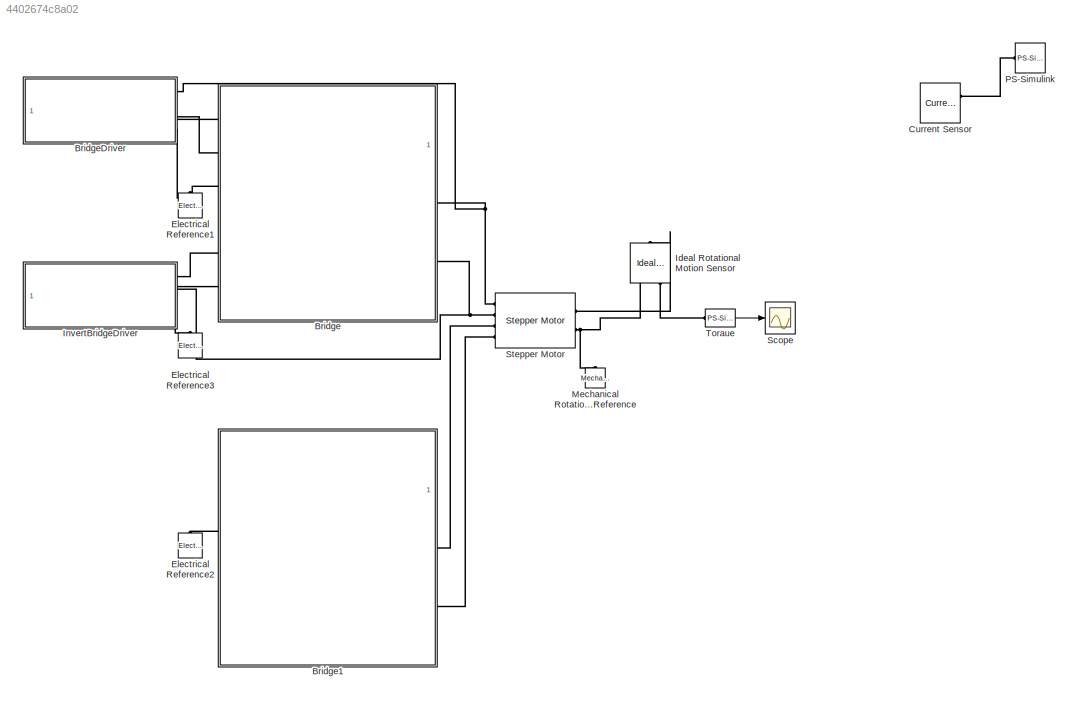
MODEL slx_4402674c8a02
KIND model
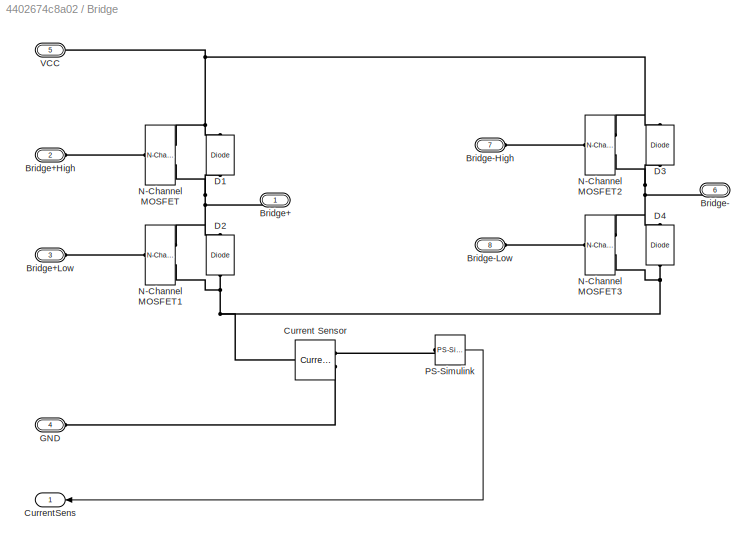
BLOCK [SubSystem] Bridge
  FunctionWithSeparateData = off
  MaskHideContents = off
  MinAlgLoopOccurrences = off
  Opaque = off
  Ports = [0, 1, 0, 0, 0, 6, 2]
  PropExecContextOutsideSubsystem = off
  RTWSystemCode = Auto
  RequestExecContextInheritance = off
BLOCK [PMIOPort] Bridge/Bridge+
  Port = 1
  Side = Right
BLOCK [PMIOPort] Bridge/Bridge+High
  Port = 2
  Side = Left
BLOCK [PMIOPort] Bridge/Bridge+Low
  Port = 3
  Side = Left
BLOCK [PMIOPort] Bridge/Bridge-
  Port = 6
  Side = Right
BLOCK [PMIOPort] Bridge/Bridge-High
  Port = 7
  Side = Left
BLOCK [PMIOPort] Bridge/Bridge-Low
  Port = 8
  Side = Left
BLOCK [Reference] Bridge/Current Sensor  REF=fl_lib/Electrical/Electrical Sensors/Current Sensor
  ClassName = current
  ComponentPath = foundation.electrical.sensors.current
  ComponentVariantNames = current
  ComponentVariants = foundation.electrical.sensors.current
  LocalVarDescs = |i1|v1
  LocalVarLogging = [0 0]
  LocalVarNames = |i1|v1
  Ports = [0, 0, 0, 0, 0, 1, 2]
  SchemaVersion = 1
  SourceBlock = fl_lib/Electrical/Electrical Sensors/Current Sensor
  SourceFile = foundation.electrical.sensors.current
  SourceType = Current Sensor
  i1_Log = off
  v1_Log = off
BLOCK [Outport] Bridge/CurrentSens
  IconDisplay = Signal name
BLOCK [Reference] Bridge/D1  REF=elec_lib/Semiconductor
Devices/Diode
  BV = Inf
  BV_unit = V
  CJ0 = 100
  CJ0_unit = pF
  C_PWL = 5
  C_PWL_unit = pF
  C_param = 1
  C_param_unit = 1
  ClassName = diode
  ComponentPath = elec.semiconductors.diode
  ComponentVariantNames = No thermal port, Show thermal port
  ComponentVariants = elec.semiconductors.diode, elec.semiconductors.diode_thermal
  Cvec = [ 3.5 1 0.4 ]
  Cvec_unit = pF
  EG = 1.11
  EG_param = 1
  EG_param_unit = 1
  EG_unit = eV
  FC = 0.5
  FC_unit = 1
  Goff = 1e-8
  Goff_unit = S
  I1 = 0.07
  I12 = [ 0.25 5 ]
  I12_unit = A
  I1_T2 = 0.245
  I1_T2_unit = A
  I1_unit = A
  IS = 1e-14
  IS_T2 = 1.25e-7
  IS_T2_unit = A
  IS_unit = A
  Irrm = -7.15
  Irrm_unit = A
  LocalVarLogging = []
  Mgrad = 0.5
  Mgrad_unit = 1
  ModelType = 3
  ModelType_unit = 1
  Ports = [0, 0, 0, 0, 0, 1, 1]
  Q_param = 1
  Q_param_unit = 1
  RS = 0.01
  RS_unit = Ohm
  Ron = 0.3
  Ron_unit = Ohm
  Rth = [ 0 10 ]
  Rth_unit = K/W
  Rz = 0.3
  Rz_unit = Ohm
  SchemaVersion = 1
  SourceBlock = elec_lib/Semiconductor\nDevices/Diode
  SourceFile = elec.semiconductors.diode
  SourceType = Diode
  TT = 50
  TT_unit = ns
  T_param = 1
  T_param_unit = 1
  Tdevice = 25
  Tdevice_unit = C
  Tmeas = 25
  Tmeas2 = 125
  Tmeas2_unit = C
  Tmeas_unit = C
  V1 = 0.7
  V12 = [ 0.7 0.8 ]
  V12_unit = V
  V1_T2 = 0.5
  V1_T2_unit = V
  V1_unit = V
  VJ = 1
  VJ_unit = V
  Vf = 0.6
  Vf_unit = V
  Vvec = [ 0.1 10 100 ]
  Vvec_unit = V
  Vz = 50
  Vz_unit = V
  XTI = 3
  XTI_param = 1
  XTI_param_unit = 1
  XTI_unit = 1
  dBVdT = 0
  dBVdT_unit = V/K
  didt = -750
  didt_unit = A/us
  ec = 1
  ec_unit = 1
  iF = 4
  iF_unit = A
  prmExp = 1
  prmExp_unit = 1
  tau = 100
  tau_unit = ns
  thermal_mass = [ 0 1 ]
  thermal_mass_initial_temperatures = [ 25 25 ]
  thermal_mass_initial_temperatures_unit = C
  thermal_mass_parameterization = 1
  thermal_mass_parameterization_unit = 1
  thermal_mass_unit = J/K
  thermal_time_constant = [ 0 10 ]
  thermal_time_constant_unit = s
  trr = 115
  trr_unit = ns
BLOCK [Reference] Bridge/D2  REF=elec_lib/Semiconductor
Devices/Diode
  BV = Inf
  BV_unit = V
  CJ0 = 100
  CJ0_unit = pF
  C_PWL = 5
  C_PWL_unit = pF
  C_param = 1
  C_param_unit = 1
  ClassName = diode
  ComponentPath = elec.semiconductors.diode
  ComponentVariantNames = No thermal port, Show thermal port
  ComponentVariants = elec.semiconductors.diode, elec.semiconductors.diode_thermal
  Cvec = [ 3.5 1 0.4 ]
  Cvec_unit = pF
  EG = 1.11
  EG_param = 1
  EG_param_unit = 1
  EG_unit = eV
  FC = 0.5
  FC_unit = 1
  Goff = 1e-8
  Goff_unit = S
  I1 = 0.07
  I12 = [ 0.25 5 ]
  I12_unit = A
  I1_T2 = 0.245
  I1_T2_unit = A
  I1_unit = A
  IS = 1e-14
  IS_T2 = 1.25e-7
  IS_T2_unit = A
  IS_unit = A
  Irrm = -7.15
  Irrm_unit = A
  LocalVarLogging = []
  Mgrad = 0.5
  Mgrad_unit = 1
  ModelType = 3
  ModelType_unit = 1
  Ports = [0, 0, 0, 0, 0, 1, 1]
  Q_param = 1
  Q_param_unit = 1
  RS = 0.01
  RS_unit = Ohm
  Ron = 0.3
  Ron_unit = Ohm
  Rth = [ 0 10 ]
  Rth_unit = K/W
  Rz = 0.3
  Rz_unit = Ohm
  SchemaVersion = 1
  SourceBlock = elec_lib/Semiconductor\nDevices/Diode
  SourceFile = elec.semiconductors.diode
  SourceType = Diode
  TT = 50
  TT_unit = ns
  T_param = 1
  T_param_unit = 1
  Tdevice = 25
  Tdevice_unit = C
  Tmeas = 25
  Tmeas2 = 125
  Tmeas2_unit = C
  Tmeas_unit = C
  V1 = 0.7
  V12 = [ 0.7 0.8 ]
  V12_unit = V
  V1_T2 = 0.5
  V1_T2_unit = V
  V1_unit = V
  VJ = 1
  VJ_unit = V
  Vf = 0.6
  Vf_unit = V
  Vvec = [ 0.1 10 100 ]
  Vvec_unit = V
  Vz = 50
  Vz_unit = V
  XTI = 3
  XTI_param = 1
  XTI_param_unit = 1
  XTI_unit = 1
  dBVdT = 0
  dBVdT_unit = V/K
  didt = -750
  didt_unit = A/us
  ec = 1
  ec_unit = 1
  iF = 4
  iF_unit = A
  prmExp = 1
  prmExp_unit = 1
  tau = 100
  tau_unit = ns
  thermal_mass = [ 0 1 ]
  thermal_mass_initial_temperatures = [ 25 25 ]
  thermal_mass_initial_temperatures_unit = C
  thermal_mass_parameterization = 1
  thermal_mass_parameterization_unit = 1
  thermal_mass_unit = J/K
  thermal_time_constant = [ 0 10 ]
  thermal_time_constant_unit = s
  trr = 115
  trr_unit = ns
BLOCK [Reference] Bridge/D3  REF=elec_lib/Semiconductor
Devices/Diode
  BV = Inf
  BV_unit = V
  CJ0 = 100
  CJ0_unit = pF
  C_PWL = 5
  C_PWL_unit = pF
  C_param = 1
  C_param_unit = 1
  ClassName = diode
  ComponentPath = elec.semiconductors.diode
  ComponentVariantNames = No thermal port, Show thermal port
  ComponentVariants = elec.semiconductors.diode, elec.semiconductors.diode_thermal
  Cvec = [ 3.5 1 0.4 ]
  Cvec_unit = pF
  EG = 1.11
  EG_param = 1
  EG_param_unit = 1
  EG_unit = eV
  FC = 0.5
  FC_unit = 1
  Goff = 1e-8
  Goff_unit = S
  I1 = 0.07
  I12 = [ 0.25 5 ]
  I12_unit = A
  I1_T2 = 0.245
  I1_T2_unit = A
  I1_unit = A
  IS = 1e-14
  IS_T2 = 1.25e-7
  IS_T2_unit = A
  IS_unit = A
  Irrm = -7.15
  Irrm_unit = A
  LocalVarLogging = []
  Mgrad = 0.5
  Mgrad_unit = 1
  ModelType = 3
  ModelType_unit = 1
  Ports = [0, 0, 0, 0, 0, 1, 1]
  Q_param = 1
  Q_param_unit = 1
  RS = 0.01
  RS_unit = Ohm
  Ron = 0.3
  Ron_unit = Ohm
  Rth = [ 0 10 ]
  Rth_unit = K/W
  Rz = 0.3
  Rz_unit = Ohm
  SchemaVersion = 1
  SourceBlock = elec_lib/Semiconductor\nDevices/Diode
  SourceFile = elec.semiconductors.diode
  SourceType = Diode
  TT = 50
  TT_unit = ns
  T_param = 1
  T_param_unit = 1
  Tdevice = 25
  Tdevice_unit = C
  Tmeas = 25
  Tmeas2 = 125
  Tmeas2_unit = C
  Tmeas_unit = C
  V1 = 0.7
  V12 = [ 0.7 0.8 ]
  V12_unit = V
  V1_T2 = 0.5
  V1_T2_unit = V
  V1_unit = V
  VJ = 1
  VJ_unit = V
  Vf = 0.6
  Vf_unit = V
  Vvec = [ 0.1 10 100 ]
  Vvec_unit = V
  Vz = 50
  Vz_unit = V
  XTI = 3
  XTI_param = 1
  XTI_param_unit = 1
  XTI_unit = 1
  dBVdT = 0
  dBVdT_unit = V/K
  didt = -750
  didt_unit = A/us
  ec = 1
  ec_unit = 1
  iF = 4
  iF_unit = A
  prmExp = 1
  prmExp_unit = 1
  tau = 100
  tau_unit = ns
  thermal_mass = [ 0 1 ]
  thermal_mass_initial_temperatures = [ 25 25 ]
  thermal_mass_initial_temperatures_unit = C
  thermal_mass_parameterization = 1
  thermal_mass_parameterization_unit = 1
  thermal_mass_unit = J/K
  thermal_time_constant = [ 0 10 ]
  thermal_time_constant_unit = s
  trr = 115
  trr_unit = ns
BLOCK [Reference] Bridge/D4  REF=elec_lib/Semiconductor
Devices/Diode
  BV = Inf
  BV_unit = V
  CJ0 = 100
  CJ0_unit = pF
  C_PWL = 5
  C_PWL_unit = pF
  C_param = 1
  C_param_unit = 1
  ClassName = diode
  ComponentPath = elec.semiconductors.diode
  ComponentVariantNames = No thermal port, Show thermal port
  ComponentVariants = elec.semiconductors.diode, elec.semiconductors.diode_thermal
  Cvec = [ 3.5 1 0.4 ]
  Cvec_unit = pF
  EG = 1.11
  EG_param = 1
  EG_param_unit = 1
  EG_unit = eV
  FC = 0.5
  FC_unit = 1
  Goff = 1e-8
  Goff_unit = S
  I1 = 0.07
  I12 = [ 0.25 5 ]
  I12_unit = A
  I1_T2 = 0.245
  I1_T2_unit = A
  I1_unit = A
  IS = 1e-14
  IS_T2 = 1.25e-7
  IS_T2_unit = A
  IS_unit = A
  Irrm = -7.15
  Irrm_unit = A
  LocalVarLogging = []
  Mgrad = 0.5
  Mgrad_unit = 1
  ModelType = 3
  ModelType_unit = 1
  Ports = [0, 0, 0, 0, 0, 1, 1]
  Q_param = 1
  Q_param_unit = 1
  RS = 0.01
  RS_unit = Ohm
  Ron = 0.3
  Ron_unit = Ohm
  Rth = [ 0 10 ]
  Rth_unit = K/W
  Rz = 0.3
  Rz_unit = Ohm
  SchemaVersion = 1
  SourceBlock = elec_lib/Semiconductor\nDevices/Diode
  SourceFile = elec.semiconductors.diode
  SourceType = Diode
  TT = 50
  TT_unit = ns
  T_param = 1
  T_param_unit = 1
  Tdevice = 25
  Tdevice_unit = C
  Tmeas = 25
  Tmeas2 = 125
  Tmeas2_unit = C
  Tmeas_unit = C
  V1 = 0.7
  V12 = [ 0.7 0.8 ]
  V12_unit = V
  V1_T2 = 0.5
  V1_T2_unit = V
  V1_unit = V
  VJ = 1
  VJ_unit = V
  Vf = 0.6
  Vf_unit = V
  Vvec = [ 0.1 10 100 ]
  Vvec_unit = V
  Vz = 50
  Vz_unit = V
  XTI = 3
  XTI_param = 1
  XTI_param_unit = 1
  XTI_unit = 1
  dBVdT = 0
  dBVdT_unit = V/K
  didt = -750
  didt_unit = A/us
  ec = 1
  ec_unit = 1
  iF = 4
  iF_unit = A
  prmExp = 1
  prmExp_unit = 1
  tau = 100
  tau_unit = ns
  thermal_mass = [ 0 1 ]
  thermal_mass_initial_temperatures = [ 25 25 ]
  thermal_mass_initial_temperatures_unit = C
  thermal_mass_parameterization = 1
  thermal_mass_parameterization_unit = 1
  thermal_mass_unit = J/K
  thermal_time_constant = [ 0 10 ]
  thermal_time_constant_unit = s
  trr = 115
  trr_unit = ns
BLOCK [PMIOPort] Bridge/GND 
  Port = 4
  Side = Left
BLOCK [Reference] Bridge/N-Channel MOSFET  REF=elec_lib/Semiconductor
Devices/N-Channel MOSFET
  BEXDatasheet = -1.5
  BEXDatasheet_unit = 1
  BEXEquCoeff = -1.5
  BEXEquCoeff_unit = 1
  Beta = 5
  Beta_unit = A/V^2
  C_GD = 80
  C_GD_unit = pF
  C_GS = 270
  C_GS_unit = pF
  C_iss = 350
  C_iss_unit = pF
  C_param = 1
  C_param_unit = 1
  C_rss = 80
  C_rss_unit = pF
  ClassName = Simscape variant
  ComponentPath = elec.semiconductors.n_mosfet
  ComponentVariantNames = No thermal port, Show thermal port
  ComponentVariants = elec.semiconductors.n_mosfet, elec.semiconductors.n_mosfet_thermal
  Id = 6
  Id_unit = A
  LocalVarLogging = []
  Ports = [0, 0, 0, 0, 0, 1, 2]
  RD = 0.01
  RD_unit = Ohm
  RS = 1e-4
  RS_unit = Ohm
  Rds = 0.025
  Rds_T2 = 0.037
  Rds_T2_unit = Ohm
  Rds_unit = Ohm
  Rth = [ 0 10 ]
  Rth_unit = K/W
  SchemaVersion = 1
  SourceBlock = elec_lib/Semiconductor\nDevices/N-Channel MOSFET
  SourceFile = elec.semiconductors.n_mosfet
  SourceType = N-Channel MOSFET
  TdeviceDatasheet = 25
  TdeviceDatasheet_unit = C
  TdeviceEquCoeff = 25
  TdeviceEquCoeff_unit = C
  Tmeas = 25
  Tmeas2 = 125
  Tmeas2_unit = C
  Tmeas_unit = C
  Vgs = 10
  Vgs_unit = V
  Vth = 1.7
  Vth_unit = V
  dVth_dT = -6
  dVth_dT_unit = mV/K
  lam = 0
  lam_unit = 1/V
  parameterization = 1
  parameterization_unit = 1
  prmDatasheet = 1
  prmDatasheet_unit = 1
  prmEquCoeff = 1
  prmEquCoeff_unit = 1
  thermal_mass = [ 0 1 ]
  thermal_mass_initial_temperatures = [ 25 25 ]
  thermal_mass_initial_temperatures_unit = C
  thermal_mass_parameterization = 1
  thermal_mass_parameterization_unit = 1
  thermal_mass_unit = J/K
  thermal_time_constant = [ 0 10 ]
  thermal_time_constant_unit = s
BLOCK [Reference] Bridge/N-Channel MOSFET1  REF=elec_lib/Semiconductor
Devices/N-Channel MOSFET
  BEXDatasheet = -1.5
  BEXDatasheet_unit = 1
  BEXEquCoeff = -1.5
  BEXEquCoeff_unit = 1
  Beta = 5
  Beta_unit = A/V^2
  C_GD = 80
  C_GD_unit = pF
  C_GS = 270
  C_GS_unit = pF
  C_iss = 350
  C_iss_unit = pF
  C_param = 1
  C_param_unit = 1
  C_rss = 80
  C_rss_unit = pF
  ClassName = Simscape variant
  ComponentPath = elec.semiconductors.n_mosfet
  ComponentVariantNames = No thermal port, Show thermal port
  ComponentVariants = elec.semiconductors.n_mosfet, elec.semiconductors.n_mosfet_thermal
  Id = 6
  Id_unit = A
  LocalVarLogging = []
  Ports = [0, 0, 0, 0, 0, 1, 2]
  RD = 0.01
  RD_unit = Ohm
  RS = 1e-4
  RS_unit = Ohm
  Rds = 0.025
  Rds_T2 = 0.037
  Rds_T2_unit = Ohm
  Rds_unit = Ohm
  Rth = [ 0 10 ]
  Rth_unit = K/W
  SchemaVersion = 1
  SourceBlock = elec_lib/Semiconductor\nDevices/N-Channel MOSFET
  SourceFile = elec.semiconductors.n_mosfet
  SourceType = N-Channel MOSFET
  TdeviceDatasheet = 25
  TdeviceDatasheet_unit = C
  TdeviceEquCoeff = 25
  TdeviceEquCoeff_unit = C
  Tmeas = 25
  Tmeas2 = 125
  Tmeas2_unit = C
  Tmeas_unit = C
  Vgs = 10
  Vgs_unit = V
  Vth = 1.7
  Vth_unit = V
  dVth_dT = -6
  dVth_dT_unit = mV/K
  lam = 0
  lam_unit = 1/V
  parameterization = 1
  parameterization_unit = 1
  prmDatasheet = 1
  prmDatasheet_unit = 1
  prmEquCoeff = 1
  prmEquCoeff_unit = 1
  thermal_mass = [ 0 1 ]
  thermal_mass_initial_temperatures = [ 25 25 ]
  thermal_mass_initial_temperatures_unit = C
  thermal_mass_parameterization = 1
  thermal_mass_parameterization_unit = 1
  thermal_mass_unit = J/K
  thermal_time_constant = [ 0 10 ]
  thermal_time_constant_unit = s
BLOCK [Reference] Bridge/N-Channel MOSFET2  REF=elec_lib/Semiconductor
Devices/N-Channel MOSFET
  BEXDatasheet = -1.5
  BEXDatasheet_unit = 1
  BEXEquCoeff = -1.5
  BEXEquCoeff_unit = 1
  Beta = 5
  Beta_unit = A/V^2
  C_GD = 80
  C_GD_unit = pF
  C_GS = 270
  C_GS_unit = pF
  C_iss = 350
  C_iss_unit = pF
  C_param = 1
  C_param_unit = 1
  C_rss = 80
  C_rss_unit = pF
  ClassName = Simscape variant
  ComponentPath = elec.semiconductors.n_mosfet
  ComponentVariantNames = No thermal port, Show thermal port
  ComponentVariants = elec.semiconductors.n_mosfet, elec.semiconductors.n_mosfet_thermal
  Id = 6
  Id_unit = A
  LocalVarLogging = []
  Ports = [0, 0, 0, 0, 0, 1, 2]
  RD = 0.01
  RD_unit = Ohm
  RS = 1e-4
  RS_unit = Ohm
  Rds = 0.025
  Rds_T2 = 0.037
  Rds_T2_unit = Ohm
  Rds_unit = Ohm
  Rth = [ 0 10 ]
  Rth_unit = K/W
  SchemaVersion = 1
  SourceBlock = elec_lib/Semiconductor\nDevices/N-Channel MOSFET
  SourceFile = elec.semiconductors.n_mosfet
  SourceType = N-Channel MOSFET
  TdeviceDatasheet = 25
  TdeviceDatasheet_unit = C
  TdeviceEquCoeff = 25
  TdeviceEquCoeff_unit = C
  Tmeas = 25
  Tmeas2 = 125
  Tmeas2_unit = C
  Tmeas_unit = C
  Vgs = 10
  Vgs_unit = V
  Vth = 1.7
  Vth_unit = V
  dVth_dT = -6
  dVth_dT_unit = mV/K
  lam = 0
  lam_unit = 1/V
  parameterization = 1
  parameterization_unit = 1
  prmDatasheet = 1
  prmDatasheet_unit = 1
  prmEquCoeff = 1
  prmEquCoeff_unit = 1
  thermal_mass = [ 0 1 ]
  thermal_mass_initial_temperatures = [ 25 25 ]
  thermal_mass_initial_temperatures_unit = C
  thermal_mass_parameterization = 1
  thermal_mass_parameterization_unit = 1
  thermal_mass_unit = J/K
  thermal_time_constant = [ 0 10 ]
  thermal_time_constant_unit = s
BLOCK [Reference] Bridge/N-Channel MOSFET3  REF=elec_lib/Semiconductor
Devices/N-Channel MOSFET
  BEXDatasheet = -1.5
  BEXDatasheet_unit = 1
  BEXEquCoeff = -1.5
  BEXEquCoeff_unit = 1
  Beta = 5
  Beta_unit = A/V^2
  C_GD = 80
  C_GD_unit = pF
  C_GS = 270
  C_GS_unit = pF
  C_iss = 350
  C_iss_unit = pF
  C_param = 1
  C_param_unit = 1
  C_rss = 80
  C_rss_unit = pF
  ClassName = Simscape variant
  ComponentPath = elec.semiconductors.n_mosfet
  ComponentVariantNames = No thermal port, Show thermal port
  ComponentVariants = elec.semiconductors.n_mosfet, elec.semiconductors.n_mosfet_thermal
  Id = 6
  Id_unit = A
  LocalVarLogging = []
  Ports = [0, 0, 0, 0, 0, 1, 2]
  RD = 0.01
  RD_unit = Ohm
  RS = 1e-4
  RS_unit = Ohm
  Rds = 0.025
  Rds_T2 = 0.037
  Rds_T2_unit = Ohm
  Rds_unit = Ohm
  Rth = [ 0 10 ]
  Rth_unit = K/W
  SchemaVersion = 1
  SourceBlock = elec_lib/Semiconductor\nDevices/N-Channel MOSFET
  SourceFile = elec.semiconductors.n_mosfet
  SourceType = N-Channel MOSFET
  TdeviceDatasheet = 25
  TdeviceDatasheet_unit = C
  TdeviceEquCoeff = 25
  TdeviceEquCoeff_unit = C
  Tmeas = 25
  Tmeas2 = 125
  Tmeas2_unit = C
  Tmeas_unit = C
  Vgs = 10
  Vgs_unit = V
  Vth = 1.7
  Vth_unit = V
  dVth_dT = -6
  dVth_dT_unit = mV/K
  lam = 0
  lam_unit = 1/V
  parameterization = 1
  parameterization_unit = 1
  prmDatasheet = 1
  prmDatasheet_unit = 1
  prmEquCoeff = 1
  prmEquCoeff_unit = 1
  thermal_mass = [ 0 1 ]
  thermal_mass_initial_temperatures = [ 25 25 ]
  thermal_mass_initial_temperatures_unit = C
  thermal_mass_parameterization = 1
  thermal_mass_parameterization_unit = 1
  thermal_mass_unit = J/K
  thermal_time_constant = [ 0 10 ]
  thermal_time_constant_unit = s
BLOCK [Reference] Bridge/PS-Simulink  REF=nesl_utility/PS-Simulink
Converter
  AffineConversion = off
  Frequencies = []
  LeftPortType = input
  PhysicalDomain = network_engine_domain
  Ports = [0, 1, 0, 0, 0, 1]
  PseudoPeriodic = off
  RightPortType = output
  SourceBlock = nesl_utility/PS-Simulink\nConverter
  SourceType = PS-Simulink\nConverter
  SubClassName = ps_output
  Unit = A
BLOCK [PMIOPort] Bridge/VCC
  Port = 5
  Side = Left
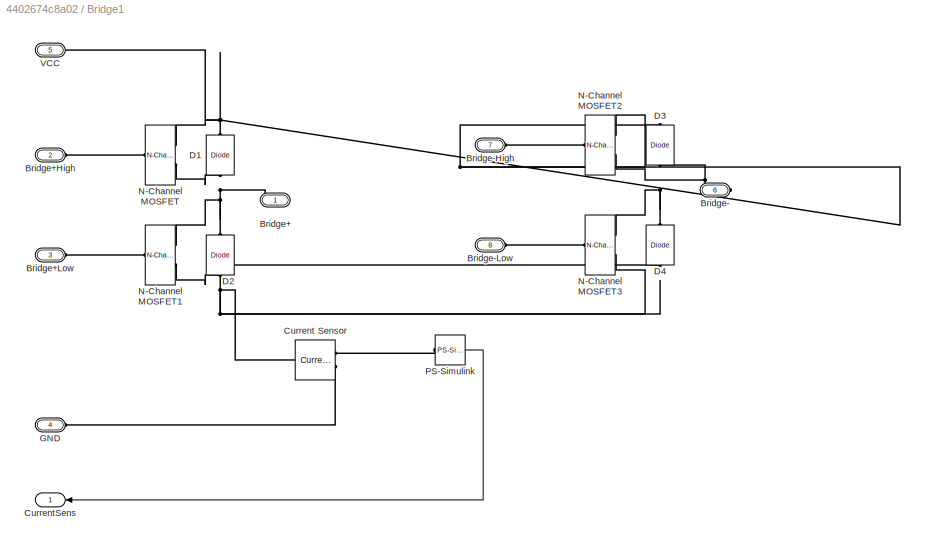
BLOCK [SubSystem] Bridge1
  FunctionWithSeparateData = off
  MaskHideContents = off
  MinAlgLoopOccurrences = off
  Opaque = off
  Ports = [0, 1, 0, 0, 0, 6, 2]
  PropExecContextOutsideSubsystem = off
  RTWSystemCode = Auto
  RequestExecContextInheritance = off
BLOCK [PMIOPort] Bridge1/Bridge+
  Port = 1
  Side = Right
BLOCK [PMIOPort] Bridge1/Bridge+High
  Port = 2
  Side = Left
BLOCK [PMIOPort] Bridge1/Bridge+Low
  Port = 3
  Side = Left
BLOCK [PMIOPort] Bridge1/Bridge-
  Port = 6
  Side = Right
BLOCK [PMIOPort] Bridge1/Bridge-High
  Port = 7
  Side = Left
BLOCK [PMIOPort] Bridge1/Bridge-Low
  Port = 8
  Side = Left
BLOCK [Reference] Bridge1/Current Sensor  REF=fl_lib/Electrical/Electrical Sensors/Current Sensor
  ClassName = current
  ComponentPath = foundation.electrical.sensors.current
  ComponentVariantNames = current
  ComponentVariants = foundation.electrical.sensors.current
  LocalVarDescs = |i1|v1
  LocalVarLogging = [0 0]
  LocalVarNames = |i1|v1
  Ports = [0, 0, 0, 0, 0, 1, 2]
  SchemaVersion = 1
  SourceBlock = fl_lib/Electrical/Electrical Sensors/Current Sensor
  SourceFile = foundation.electrical.sensors.current
  SourceType = Current Sensor
  i1_Log = off
  v1_Log = off
BLOCK [Outport] Bridge1/CurrentSens
  IconDisplay = Signal name
BLOCK [Reference] Bridge1/D1  REF=elec_lib/Semiconductor
Devices/Diode
  BV = Inf
  BV_unit = V
  CJ0 = 100
  CJ0_unit = pF
  C_PWL = 5
  C_PWL_unit = pF
  C_param = 1
  C_param_unit = 1
  ClassName = diode
  ComponentPath = elec.semiconductors.diode
  ComponentVariantNames = No thermal port, Show thermal port
  ComponentVariants = elec.semiconductors.diode, elec.semiconductors.diode_thermal
  Cvec = [ 3.5 1 0.4 ]
  Cvec_unit = pF
  EG = 1.11
  EG_param = 1
  EG_param_unit = 1
  EG_unit = eV
  FC = 0.5
  FC_unit = 1
  Goff = 1e-8
  Goff_unit = S
  I1 = 0.07
  I12 = [ 0.25 5 ]
  I12_unit = A
  I1_T2 = 0.245
  I1_T2_unit = A
  I1_unit = A
  IS = 1e-14
  IS_T2 = 1.25e-7
  IS_T2_unit = A
  IS_unit = A
  Irrm = -7.15
  Irrm_unit = A
  LocalVarLogging = []
  Mgrad = 0.5
  Mgrad_unit = 1
  ModelType = 3
  ModelType_unit = 1
  Ports = [0, 0, 0, 0, 0, 1, 1]
  Q_param = 1
  Q_param_unit = 1
  RS = 0.01
  RS_unit = Ohm
  Ron = 0.3
  Ron_unit = Ohm
  Rth = [ 0 10 ]
  Rth_unit = K/W
  Rz = 0.3
  Rz_unit = Ohm
  SchemaVersion = 1
  SourceBlock = elec_lib/Semiconductor\nDevices/Diode
  SourceFile = elec.semiconductors.diode
  SourceType = Diode
  TT = 50
  TT_unit = ns
  T_param = 1
  T_param_unit = 1
  Tdevice = 25
  Tdevice_unit = C
  Tmeas = 25
  Tmeas2 = 125
  Tmeas2_unit = C
  Tmeas_unit = C
  V1 = 0.7
  V12 = [ 0.7 0.8 ]
  V12_unit = V
  V1_T2 = 0.5
  V1_T2_unit = V
  V1_unit = V
  VJ = 1
  VJ_unit = V
  Vf = 0.6
  Vf_unit = V
  Vvec = [ 0.1 10 100 ]
  Vvec_unit = V
  Vz = 50
  Vz_unit = V
  XTI = 3
  XTI_param = 1
  XTI_param_unit = 1
  XTI_unit = 1
  dBVdT = 0
  dBVdT_unit = V/K
  didt = -750
  didt_unit = A/us
  ec = 1
  ec_unit = 1
  iF = 4
  iF_unit = A
  prmExp = 1
  prmExp_unit = 1
  tau = 100
  tau_unit = ns
  thermal_mass = [ 0 1 ]
  thermal_mass_initial_temperatures = [ 25 25 ]
  thermal_mass_initial_temperatures_unit = C
  thermal_mass_parameterization = 1
  thermal_mass_parameterization_unit = 1
  thermal_mass_unit = J/K
  thermal_time_constant = [ 0 10 ]
  thermal_time_constant_unit = s
  trr = 115
  trr_unit = ns
BLOCK [Reference] Bridge1/D2  REF=elec_lib/Semiconductor
Devices/Diode
  BV = Inf
  BV_unit = V
  CJ0 = 100
  CJ0_unit = pF
  C_PWL = 5
  C_PWL_unit = pF
  C_param = 1
  C_param_unit = 1
  ClassName = diode
  ComponentPath = elec.semiconductors.diode
  ComponentVariantNames = No thermal port, Show thermal port
  ComponentVariants = elec.semiconductors.diode, elec.semiconductors.diode_thermal
  Cvec = [ 3.5 1 0.4 ]
  Cvec_unit = pF
  EG = 1.11
  EG_param = 1
  EG_param_unit = 1
  EG_unit = eV
  FC = 0.5
  FC_unit = 1
  Goff = 1e-8
  Goff_unit = S
  I1 = 0.07
  I12 = [ 0.25 5 ]
  I12_unit = A
  I1_T2 = 0.245
  I1_T2_unit = A
  I1_unit = A
  IS = 1e-14
  IS_T2 = 1.25e-7
  IS_T2_unit = A
  IS_unit = A
  Irrm = -7.15
  Irrm_unit = A
  LocalVarLogging = []
  Mgrad = 0.5
  Mgrad_unit = 1
  ModelType = 3
  ModelType_unit = 1
  Ports = [0, 0, 0, 0, 0, 1, 1]
  Q_param = 1
  Q_param_unit = 1
  RS = 0.01
  RS_unit = Ohm
  Ron = 0.3
  Ron_unit = Ohm
  Rth = [ 0 10 ]
  Rth_unit = K/W
  Rz = 0.3
  Rz_unit = Ohm
  SchemaVersion = 1
  SourceBlock = elec_lib/Semiconductor\nDevices/Diode
  SourceFile = elec.semiconductors.diode
  SourceType = Diode
  TT = 50
  TT_unit = ns
  T_param = 1
  T_param_unit = 1
  Tdevice = 25
  Tdevice_unit = C
  Tmeas = 25
  Tmeas2 = 125
  Tmeas2_unit = C
  Tmeas_unit = C
  V1 = 0.7
  V12 = [ 0.7 0.8 ]
  V12_unit = V
  V1_T2 = 0.5
  V1_T2_unit = V
  V1_unit = V
  VJ = 1
  VJ_unit = V
  Vf = 0.6
  Vf_unit = V
  Vvec = [ 0.1 10 100 ]
  Vvec_unit = V
  Vz = 50
  Vz_unit = V
  XTI = 3
  XTI_param = 1
  XTI_param_unit = 1
  XTI_unit = 1
  dBVdT = 0
  dBVdT_unit = V/K
  didt = -750
  didt_unit = A/us
  ec = 1
  ec_unit = 1
  iF = 4
  iF_unit = A
  prmExp = 1
  prmExp_unit = 1
  tau = 100
  tau_unit = ns
  thermal_mass = [ 0 1 ]
  thermal_mass_initial_temperatures = [ 25 25 ]
  thermal_mass_initial_temperatures_unit = C
  thermal_mass_parameterization = 1
  thermal_mass_parameterization_unit = 1
  thermal_mass_unit = J/K
  thermal_time_constant = [ 0 10 ]
  thermal_time_constant_unit = s
  trr = 115
  trr_unit = ns
BLOCK [Reference] Bridge1/D3  REF=elec_lib/Semiconductor
Devices/Diode
  BV = Inf
  BV_unit = V
  CJ0 = 100
  CJ0_unit = pF
  C_PWL = 5
  C_PWL_unit = pF
  C_param = 1
  C_param_unit = 1
  ClassName = diode
  ComponentPath = elec.semiconductors.diode
  ComponentVariantNames = No thermal port, Show thermal port
  ComponentVariants = elec.semiconductors.diode, elec.semiconductors.diode_thermal
  Cvec = [ 3.5 1 0.4 ]
  Cvec_unit = pF
  EG = 1.11
  EG_param = 1
  EG_param_unit = 1
  EG_unit = eV
  FC = 0.5
  FC_unit = 1
  Goff = 1e-8
  Goff_unit = S
  I1 = 0.07
  I12 = [ 0.25 5 ]
  I12_unit = A
  I1_T2 = 0.245
  I1_T2_unit = A
  I1_unit = A
  IS = 1e-14
  IS_T2 = 1.25e-7
  IS_T2_unit = A
  IS_unit = A
  Irrm = -7.15
  Irrm_unit = A
  LocalVarLogging = []
  Mgrad = 0.5
  Mgrad_unit = 1
  ModelType = 3
  ModelType_unit = 1
  Ports = [0, 0, 0, 0, 0, 1, 1]
  Q_param = 1
  Q_param_unit = 1
  RS = 0.01
  RS_unit = Ohm
  Ron = 0.3
  Ron_unit = Ohm
  Rth = [ 0 10 ]
  Rth_unit = K/W
  Rz = 0.3
  Rz_unit = Ohm
  SchemaVersion = 1
  SourceBlock = elec_lib/Semiconductor\nDevices/Diode
  SourceFile = elec.semiconductors.diode
  SourceType = Diode
  TT = 50
  TT_unit = ns
  T_param = 1
  T_param_unit = 1
  Tdevice = 25
  Tdevice_unit = C
  Tmeas = 25
  Tmeas2 = 125
  Tmeas2_unit = C
  Tmeas_unit = C
  V1 = 0.7
  V12 = [ 0.7 0.8 ]
  V12_unit = V
  V1_T2 = 0.5
  V1_T2_unit = V
  V1_unit = V
  VJ = 1
  VJ_unit = V
  Vf = 0.6
  Vf_unit = V
  Vvec = [ 0.1 10 100 ]
  Vvec_unit = V
  Vz = 50
  Vz_unit = V
  XTI = 3
  XTI_param = 1
  XTI_param_unit = 1
  XTI_unit = 1
  dBVdT = 0
  dBVdT_unit = V/K
  didt = -750
  didt_unit = A/us
  ec = 1
  ec_unit = 1
  iF = 4
  iF_unit = A
  prmExp = 1
  prmExp_unit = 1
  tau = 100
  tau_unit = ns
  thermal_mass = [ 0 1 ]
  thermal_mass_initial_temperatures = [ 25 25 ]
  thermal_mass_initial_temperatures_unit = C
  thermal_mass_parameterization = 1
  thermal_mass_parameterization_unit = 1
  thermal_mass_unit = J/K
  thermal_time_constant = [ 0 10 ]
  thermal_time_constant_unit = s
  trr = 115
  trr_unit = ns
BLOCK [Reference] Bridge1/D4  REF=elec_lib/Semiconductor
Devices/Diode
  BV = Inf
  BV_unit = V
  CJ0 = 100
  CJ0_unit = pF
  C_PWL = 5
  C_PWL_unit = pF
  C_param = 1
  C_param_unit = 1
  ClassName = diode
  ComponentPath = elec.semiconductors.diode
  ComponentVariantNames = No thermal port, Show thermal port
  ComponentVariants = elec.semiconductors.diode, elec.semiconductors.diode_thermal
  Cvec = [ 3.5 1 0.4 ]
  Cvec_unit = pF
  EG = 1.11
  EG_param = 1
  EG_param_unit = 1
  EG_unit = eV
  FC = 0.5
  FC_unit = 1
  Goff = 1e-8
  Goff_unit = S
  I1 = 0.07
  I12 = [ 0.25 5 ]
  I12_unit = A
  I1_T2 = 0.245
  I1_T2_unit = A
  I1_unit = A
  IS = 1e-14
  IS_T2 = 1.25e-7
  IS_T2_unit = A
  IS_unit = A
  Irrm = -7.15
  Irrm_unit = A
  LocalVarLogging = []
  Mgrad = 0.5
  Mgrad_unit = 1
  ModelType = 3
  ModelType_unit = 1
  Ports = [0, 0, 0, 0, 0, 1, 1]
  Q_param = 1
  Q_param_unit = 1
  RS = 0.01
  RS_unit = Ohm
  Ron = 0.3
  Ron_unit = Ohm
  Rth = [ 0 10 ]
  Rth_unit = K/W
  Rz = 0.3
  Rz_unit = Ohm
  SchemaVersion = 1
  SourceBlock = elec_lib/Semiconductor\nDevices/Diode
  SourceFile = elec.semiconductors.diode
  SourceType = Diode
  TT = 50
  TT_unit = ns
  T_param = 1
  T_param_unit = 1
  Tdevice = 25
  Tdevice_unit = C
  Tmeas = 25
  Tmeas2 = 125
  Tmeas2_unit = C
  Tmeas_unit = C
  V1 = 0.7
  V12 = [ 0.7 0.8 ]
  V12_unit = V
  V1_T2 = 0.5
  V1_T2_unit = V
  V1_unit = V
  VJ = 1
  VJ_unit = V
  Vf = 0.6
  Vf_unit = V
  Vvec = [ 0.1 10 100 ]
  Vvec_unit = V
  Vz = 50
  Vz_unit = V
  XTI = 3
  XTI_param = 1
  XTI_param_unit = 1
  XTI_unit = 1
  dBVdT = 0
  dBVdT_unit = V/K
  didt = -750
  didt_unit = A/us
  ec = 1
  ec_unit = 1
  iF = 4
  iF_unit = A
  prmExp = 1
  prmExp_unit = 1
  tau = 100
  tau_unit = ns
  thermal_mass = [ 0 1 ]
  thermal_mass_initial_temperatures = [ 25 25 ]
  thermal_mass_initial_temperatures_unit = C
  thermal_mass_parameterization = 1
  thermal_mass_parameterization_unit = 1
  thermal_mass_unit = J/K
  thermal_time_constant = [ 0 10 ]
  thermal_time_constant_unit = s
  trr = 115
  trr_unit = ns
BLOCK [PMIOPort] Bridge1/GND 
  Port = 4
  Side = Left
BLOCK [Reference] Bridge1/N-Channel MOSFET  REF=elec_lib/Semiconductor
Devices/N-Channel MOSFET
  BEXDatasheet = -1.5
  BEXDatasheet_unit = 1
  BEXEquCoeff = -1.5
  BEXEquCoeff_unit = 1
  Beta = 5
  Beta_unit = A/V^2
  C_GD = 80
  C_GD_unit = pF
  C_GS = 270
  C_GS_unit = pF
  C_iss = 350
  C_iss_unit = pF
  C_param = 1
  C_param_unit = 1
  C_rss = 80
  C_rss_unit = pF
  ClassName = Simscape variant
  ComponentPath = elec.semiconductors.n_mosfet
  ComponentVariantNames = No thermal port, Show thermal port
  ComponentVariants = elec.semiconductors.n_mosfet, elec.semiconductors.n_mosfet_thermal
  Id = 6
  Id_unit = A
  LocalVarLogging = []
  Ports = [0, 0, 0, 0, 0, 1, 2]
  RD = 0.01
  RD_unit = Ohm
  RS = 1e-4
  RS_unit = Ohm
  Rds = 0.025
  Rds_T2 = 0.037
  Rds_T2_unit = Ohm
  Rds_unit = Ohm
  Rth = [ 0 10 ]
  Rth_unit = K/W
  SchemaVersion = 1
  SourceBlock = elec_lib/Semiconductor\nDevices/N-Channel MOSFET
  SourceFile = elec.semiconductors.n_mosfet
  SourceType = N-Channel MOSFET
  TdeviceDatasheet = 25
  TdeviceDatasheet_unit = C
  TdeviceEquCoeff = 25
  TdeviceEquCoeff_unit = C
  Tmeas = 25
  Tmeas2 = 125
  Tmeas2_unit = C
  Tmeas_unit = C
  Vgs = 10
  Vgs_unit = V
  Vth = 1.7
  Vth_unit = V
  dVth_dT = -6
  dVth_dT_unit = mV/K
  lam = 0
  lam_unit = 1/V
  parameterization = 1
  parameterization_unit = 1
  prmDatasheet = 1
  prmDatasheet_unit = 1
  prmEquCoeff = 1
  prmEquCoeff_unit = 1
  thermal_mass = [ 0 1 ]
  thermal_mass_initial_temperatures = [ 25 25 ]
  thermal_mass_initial_temperatures_unit = C
  thermal_mass_parameterization = 1
  thermal_mass_parameterization_unit = 1
  thermal_mass_unit = J/K
  thermal_time_constant = [ 0 10 ]
  thermal_time_constant_unit = s
BLOCK [Reference] Bridge1/N-Channel MOSFET1  REF=elec_lib/Semiconductor
Devices/N-Channel MOSFET
  BEXDatasheet = -1.5
  BEXDatasheet_unit = 1
  BEXEquCoeff = -1.5
  BEXEquCoeff_unit = 1
  Beta = 5
  Beta_unit = A/V^2
  C_GD = 80
  C_GD_unit = pF
  C_GS = 270
  C_GS_unit = pF
  C_iss = 350
  C_iss_unit = pF
  C_param = 1
  C_param_unit = 1
  C_rss = 80
  C_rss_unit = pF
  ClassName = Simscape variant
  ComponentPath = elec.semiconductors.n_mosfet
  ComponentVariantNames = No thermal port, Show thermal port
  ComponentVariants = elec.semiconductors.n_mosfet, elec.semiconductors.n_mosfet_thermal
  Id = 6
  Id_unit = A
  LocalVarLogging = []
  Ports = [0, 0, 0, 0, 0, 1, 2]
  RD = 0.01
  RD_unit = Ohm
  RS = 1e-4
  RS_unit = Ohm
  Rds = 0.025
  Rds_T2 = 0.037
  Rds_T2_unit = Ohm
  Rds_unit = Ohm
  Rth = [ 0 10 ]
  Rth_unit = K/W
  SchemaVersion = 1
  SourceBlock = elec_lib/Semiconductor\nDevices/N-Channel MOSFET
  SourceFile = elec.semiconductors.n_mosfet
  SourceType = N-Channel MOSFET
  TdeviceDatasheet = 25
  TdeviceDatasheet_unit = C
  TdeviceEquCoeff = 25
  TdeviceEquCoeff_unit = C
  Tmeas = 25
  Tmeas2 = 125
  Tmeas2_unit = C
  Tmeas_unit = C
  Vgs = 10
  Vgs_unit = V
  Vth = 1.7
  Vth_unit = V
  dVth_dT = -6
  dVth_dT_unit = mV/K
  lam = 0
  lam_unit = 1/V
  parameterization = 1
  parameterization_unit = 1
  prmDatasheet = 1
  prmDatasheet_unit = 1
  prmEquCoeff = 1
  prmEquCoeff_unit = 1
  thermal_mass = [ 0 1 ]
  thermal_mass_initial_temperatures = [ 25 25 ]
  thermal_mass_initial_temperatures_unit = C
  thermal_mass_parameterization = 1
  thermal_mass_parameterization_unit = 1
  thermal_mass_unit = J/K
  thermal_time_constant = [ 0 10 ]
  thermal_time_constant_unit = s
BLOCK [Reference] Bridge1/N-Channel MOSFET2  REF=elec_lib/Semiconductor
Devices/N-Channel MOSFET
  BEXDatasheet = -1.5
  BEXDatasheet_unit = 1
  BEXEquCoeff = -1.5
  BEXEquCoeff_unit = 1
  Beta = 5
  Beta_unit = A/V^2
  C_GD = 80
  C_GD_unit = pF
  C_GS = 270
  C_GS_unit = pF
  C_iss = 350
  C_iss_unit = pF
  C_param = 1
  C_param_unit = 1
  C_rss = 80
  C_rss_unit = pF
  ClassName = Simscape variant
  ComponentPath = elec.semiconductors.n_mosfet
  ComponentVariantNames = No thermal port, Show thermal port
  ComponentVariants = elec.semiconductors.n_mosfet, elec.semiconductors.n_mosfet_thermal
  Id = 6
  Id_unit = A
  LocalVarLogging = []
  Ports = [0, 0, 0, 0, 0, 1, 2]
  RD = 0.01
  RD_unit = Ohm
  RS = 1e-4
  RS_unit = Ohm
  Rds = 0.025
  Rds_T2 = 0.037
  Rds_T2_unit = Ohm
  Rds_unit = Ohm
  Rth = [ 0 10 ]
  Rth_unit = K/W
  SchemaVersion = 1
  SourceBlock = elec_lib/Semiconductor\nDevices/N-Channel MOSFET
  SourceFile = elec.semiconductors.n_mosfet
  SourceType = N-Channel MOSFET
  TdeviceDatasheet = 25
  TdeviceDatasheet_unit = C
  TdeviceEquCoeff = 25
  TdeviceEquCoeff_unit = C
  Tmeas = 25
  Tmeas2 = 125
  Tmeas2_unit = C
  Tmeas_unit = C
  Vgs = 10
  Vgs_unit = V
  Vth = 1.7
  Vth_unit = V
  dVth_dT = -6
  dVth_dT_unit = mV/K
  lam = 0
  lam_unit = 1/V
  parameterization = 1
  parameterization_unit = 1
  prmDatasheet = 1
  prmDatasheet_unit = 1
  prmEquCoeff = 1
  prmEquCoeff_unit = 1
  thermal_mass = [ 0 1 ]
  thermal_mass_initial_temperatures = [ 25 25 ]
  thermal_mass_initial_temperatures_unit = C
  thermal_mass_parameterization = 1
  thermal_mass_parameterization_unit = 1
  thermal_mass_unit = J/K
  thermal_time_constant = [ 0 10 ]
  thermal_time_constant_unit = s
BLOCK [Reference] Bridge1/N-Channel MOSFET3  REF=elec_lib/Semiconductor
Devices/N-Channel MOSFET
  BEXDatasheet = -1.5
  BEXDatasheet_unit = 1
  BEXEquCoeff = -1.5
  BEXEquCoeff_unit = 1
  Beta = 5
  Beta_unit = A/V^2
  C_GD = 80
  C_GD_unit = pF
  C_GS = 270
  C_GS_unit = pF
  C_iss = 350
  C_iss_unit = pF
  C_param = 1
  C_param_unit = 1
  C_rss = 80
  C_rss_unit = pF
  ClassName = Simscape variant
  ComponentPath = elec.semiconductors.n_mosfet
  ComponentVariantNames = No thermal port, Show thermal port
  ComponentVariants = elec.semiconductors.n_mosfet, elec.semiconductors.n_mosfet_thermal
  Id = 6
  Id_unit = A
  LocalVarLogging = []
  Ports = [0, 0, 0, 0, 0, 1, 2]
  RD = 0.01
  RD_unit = Ohm
  RS = 1e-4
  RS_unit = Ohm
  Rds = 0.025
  Rds_T2 = 0.037
  Rds_T2_unit = Ohm
  Rds_unit = Ohm
  Rth = [ 0 10 ]
  Rth_unit = K/W
  SchemaVersion = 1
  SourceBlock = elec_lib/Semiconductor\nDevices/N-Channel MOSFET
  SourceFile = elec.semiconductors.n_mosfet
  SourceType = N-Channel MOSFET
  TdeviceDatasheet = 25
  TdeviceDatasheet_unit = C
  TdeviceEquCoeff = 25
  TdeviceEquCoeff_unit = C
  Tmeas = 25
  Tmeas2 = 125
  Tmeas2_unit = C
  Tmeas_unit = C
  Vgs = 10
  Vgs_unit = V
  Vth = 1.7
  Vth_unit = V
  dVth_dT = -6
  dVth_dT_unit = mV/K
  lam = 0
  lam_unit = 1/V
  parameterization = 1
  parameterization_unit = 1
  prmDatasheet = 1
  prmDatasheet_unit = 1
  prmEquCoeff = 1
  prmEquCoeff_unit = 1
  thermal_mass = [ 0 1 ]
  thermal_mass_initial_temperatures = [ 25 25 ]
  thermal_mass_initial_temperatures_unit = C
  thermal_mass_parameterization = 1
  thermal_mass_parameterization_unit = 1
  thermal_mass_unit = J/K
  thermal_time_constant = [ 0 10 ]
  thermal_time_constant_unit = s
BLOCK [Reference] Bridge1/PS-Simulink  REF=nesl_utility/PS-Simulink
Converter
  AffineConversion = off
  Frequencies = []
  LeftPortType = input
  PhysicalDomain = network_engine_domain
  Ports = [0, 1, 0, 0, 0, 1]
  PseudoPeriodic = off
  RightPortType = output
  SourceBlock = nesl_utility/PS-Simulink\nConverter
  SourceType = PS-Simulink\nConverter
  SubClassName = ps_output
  Unit = A
BLOCK [PMIOPort] Bridge1/VCC
  Port = 5
  Side = Left
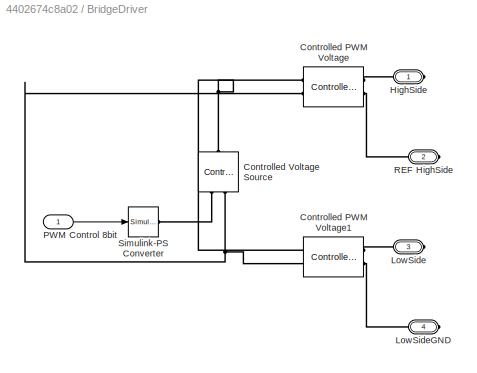
BLOCK [SubSystem] BridgeDriver
  FunctionWithSeparateData = off
  MaskHideContents = off
  MinAlgLoopOccurrences = off
  Opaque = off
  Ports = [1, 0, 0, 0, 0, 0, 4]
  PropExecContextOutsideSubsystem = off
  RTWSystemCode = Auto
  RequestExecContextInheritance = off
BLOCK [Reference] BridgeDriver/Controlled PWM Voltage  REF=elec_lib/Actuators & Drivers/Drivers/Controlled PWM
Voltage
  ClassName = controlled_pwm
  ComponentPath = elec.actuators.drivers.controlled_pwm
  ComponentVariantNames = controlled_pwm
  ComponentVariants = elec.actuators.drivers.controlled_pwm
  F = 150
  F_unit = kHz
  LocalVarLogging = []
  Ports = [0, 0, 0, 0, 0, 2, 2]
  SchemaVersion = 1
  SourceBlock = elec_lib/Actuators & Drivers/Drivers/Controlled PWM\nVoltage
  SourceFile = elec.actuators.drivers.controlled_pwm
  SourceType = Controlled PWM\nVoltage
  TD = 0
  TD_unit = s
  Vm = 10
  Vm_unit = V
  Vmax = 255
  Vmax_unit = V
  Vmin = 0
  Vmin_unit = V
  event_type = 1
  event_type_unit = 1
  pulse_width_offset = 0
  pulse_width_offset_unit = s
  pwm_or_av = 1
  pwm_or_av_unit = 1
  sample_time = 1e-6
  sample_time_unit = s
BLOCK [Reference] BridgeDriver/Controlled PWM Voltage1  REF=elec_lib/Actuators & Drivers/Drivers/Controlled PWM
Voltage
  ClassName = controlled_pwm
  ComponentPath = elec.actuators.drivers.controlled_pwm
  ComponentVariantNames = controlled_pwm
  ComponentVariants = elec.actuators.drivers.controlled_pwm
  F = 150
  F_unit = kHz
  LocalVarLogging = []
  Ports = [0, 0, 0, 0, 0, 2, 2]
  SchemaVersion = 1
  SourceBlock = elec_lib/Actuators & Drivers/Drivers/Controlled PWM\nVoltage
  SourceFile = elec.actuators.drivers.controlled_pwm
  SourceType = Controlled PWM\nVoltage
  TD = 0
  TD_unit = s
  Vm = 10
  Vm_unit = V
  Vmax = 255
  Vmax_unit = V
  Vmin = 0
  Vmin_unit = V
  event_type = 1
  event_type_unit = 1
  pulse_width_offset = 0
  pulse_width_offset_unit = s
  pwm_or_av = 1
  pwm_or_av_unit = 1
  sample_time = 1e-6
  sample_time_unit = s
BLOCK [Reference] BridgeDriver/Controlled Voltage Source  REF=fl_lib/Electrical/Electrical Sources/Controlled Voltage
Source
  ClassName = controlled_voltage_source
  ComponentPath = foundation.electrical.sources.controlled_voltage
  ComponentVariantNames = controlled_voltage
  ComponentVariants = foundation.electrical.sources.controlled_voltage
  LocalVarDescs = |Current (A)|Voltage (V)|Power (W)
  LocalVarLogging = [0 0 0]
  LocalVarNames = |current|voltage|power
  Ports = [0, 0, 0, 0, 0, 1, 2]
  SchemaVersion = 1
  SourceBlock = fl_lib/Electrical/Electrical Sources/Controlled Voltage\nSource
  SourceFile = foundation.electrical.sources.controlled_voltage
  SourceType = Controlled Voltage\nSource
  i_Log = off
  v_Log = off
BLOCK [PMIOPort] BridgeDriver/HighSide
  Port = 1
  Side = Right
BLOCK [PMIOPort] BridgeDriver/LowSide
  Port = 3
  Side = Right
BLOCK [PMIOPort] BridgeDriver/LowSideGND
  Port = 4
  Side = Right
BLOCK [Inport] BridgeDriver/PWM Control 8bit
  IconDisplay = Port number
BLOCK [PMIOPort] BridgeDriver/REF HighSide
  Port = 2
  Side = Right
BLOCK [Reference] BridgeDriver/Simulink-PS Converter  REF=nesl_utility/Simulink-PS
Converter
  AffineConversion = off
  Frequencies = []
  InputFilterTimeConstant = .001
  InputFiltering = off
  LeftPortType = input
  NoiseDistribution = none
  NoiseParameters = []
  PhysicalDomain = network_engine_domain
  Ports = [1, 0, 0, 0, 0, 0, 1]
  PseudoPeriodic = off
  RightPortType = output
  SimscapeFilterOrder = 1
  SourceBlock = nesl_utility/Simulink-PS\nConverter
  SourceType = Simulink-PS\nConverter
  SubClassName = ps_input
  UdotUserProvided = 0
  Unit = V
BLOCK [Reference] Current Sensor  REF=fl_lib/Electrical/Electrical Sensors/Current Sensor
  ClassName = current
  ComponentPath = foundation.electrical.sensors.current
  ComponentVariantNames = current
  ComponentVariants = foundation.electrical.sensors.current
  LocalVarDescs = |i1|v1
  LocalVarLogging = [0 0]
  LocalVarNames = |i1|v1
  Ports = [0, 0, 0, 0, 0, 1, 2]
  SchemaVersion = 1
  SourceBlock = fl_lib/Electrical/Electrical Sensors/Current Sensor
  SourceFile = foundation.electrical.sensors.current
  SourceType = Current Sensor
  i1_Log = off
  v1_Log = off
BLOCK [Reference] Electrical Reference1  REF=fl_lib/Electrical/Electrical Elements/Electrical Reference
  ClassName = reference_electrical
  ComponentPath = foundation.electrical.elements.reference
  ComponentVariantNames = reference
  ComponentVariants = foundation.electrical.elements.reference
  LocalVarDescs = |v1
  LocalVarLogging = []
  LocalVarNames = |v1
  Ports = [0, 0, 0, 0, 0, 1]
  SchemaVersion = 1
  SourceBlock = fl_lib/Electrical/Electrical Elements/Electrical Reference
  SourceFile = foundation.electrical.elements.reference
  SourceType = Electrical Reference
  i_Log = off
BLOCK [Reference] Electrical Reference2  REF=fl_lib/Electrical/Electrical Elements/Electrical Reference
  ClassName = reference_electrical
  ComponentPath = foundation.electrical.elements.reference
  ComponentVariantNames = reference
  ComponentVariants = foundation.electrical.elements.reference
  LocalVarDescs = |v1
  LocalVarLogging = []
  LocalVarNames = |v1
  Ports = [0, 0, 0, 0, 0, 1]
  SchemaVersion = 1
  SourceBlock = fl_lib/Electrical/Electrical Elements/Electrical Reference
  SourceFile = foundation.electrical.elements.reference
  SourceType = Electrical Reference
  i_Log = off
BLOCK [Reference] Electrical Reference3  REF=fl_lib/Electrical/Electrical Elements/Electrical Reference
  ClassName = reference_electrical
  ComponentPath = foundation.electrical.elements.reference
  ComponentVariantNames = reference
  ComponentVariants = foundation.electrical.elements.reference
  LocalVarDescs = |v1
  LocalVarLogging = []
  LocalVarNames = |v1
  Ports = [0, 0, 0, 0, 0, 1]
  SchemaVersion = 1
  SourceBlock = fl_lib/Electrical/Electrical Elements/Electrical Reference
  SourceFile = foundation.electrical.elements.reference
  SourceType = Electrical Reference
  i_Log = off
BLOCK [Reference] Ideal Rotational Motion Sensor  REF=fl_lib/Mechanical/Mechanical Sensors/Ideal Rotational
Motion Sensor
  ClassName = sensor_rot_motion
  ComponentPath = foundation.mechanical.sensors.angular_velocity
  ComponentVariantNames = angular_velocity
  ComponentVariants = foundation.mechanical.sensors.angular_velocity
  LocalVarDescs = |w|t|phi
  LocalVarLogging = []
  LocalVarNames = |w|t|phi
  Ports = [0, 0, 0, 0, 0, 1, 3]
  SchemaVersion = 1
  SourceBlock = fl_lib/Mechanical/Mechanical Sensors/Ideal Rotational\nMotion Sensor
  SourceFile = foundation.mechanical.sensors.angular_velocity
  SourceType = Ideal Rotational\nMotion Sensor
  offset = 0
  offset_unit = rad
  phi_Log = off
  t_Log = off
  w_Log = off
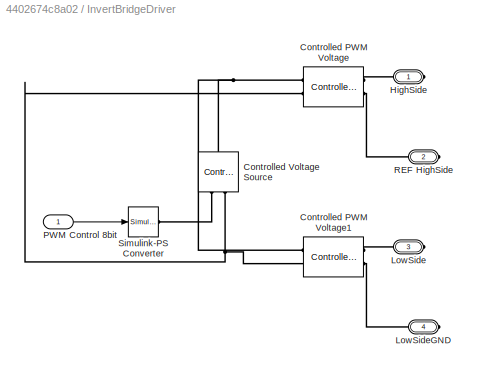
BLOCK [SubSystem] InvertBridgeDriver
  FunctionWithSeparateData = off
  MaskHideContents = off
  MinAlgLoopOccurrences = off
  Opaque = off
  Ports = [1, 0, 0, 0, 0, 0, 4]
  PropExecContextOutsideSubsystem = off
  RTWSystemCode = Auto
  RequestExecContextInheritance = off
BLOCK [Reference] InvertBridgeDriver/Controlled PWM Voltage  REF=elec_lib/Actuators & Drivers/Drivers/Controlled PWM
Voltage
  ClassName = controlled_pwm
  ComponentPath = elec.actuators.drivers.controlled_pwm
  ComponentVariantNames = controlled_pwm
  ComponentVariants = elec.actuators.drivers.controlled_pwm
  F = 150
  F_unit = kHz
  LocalVarLogging = []
  Ports = [0, 0, 0, 0, 0, 2, 2]
  SchemaVersion = 1
  SourceBlock = elec_lib/Actuators & Drivers/Drivers/Controlled PWM\nVoltage
  SourceFile = elec.actuators.drivers.controlled_pwm
  SourceType = Controlled PWM\nVoltage
  TD = 0
  TD_unit = s
  Vm = 10
  Vm_unit = V
  Vmax = -255
  Vmax_unit = V
  Vmin = 0
  Vmin_unit = V
  event_type = 1
  event_type_unit = 1
  pulse_width_offset = 0
  pulse_width_offset_unit = s
  pwm_or_av = 1
  pwm_or_av_unit = 1
  sample_time = 1e-6
  sample_time_unit = s
BLOCK [Reference] InvertBridgeDriver/Controlled PWM Voltage1  REF=elec_lib/Actuators & Drivers/Drivers/Controlled PWM
Voltage
  ClassName = controlled_pwm
  ComponentPath = elec.actuators.drivers.controlled_pwm
  ComponentVariantNames = controlled_pwm
  ComponentVariants = elec.actuators.drivers.controlled_pwm
  F = 150
  F_unit = kHz
  LocalVarLogging = []
  Ports = [0, 0, 0, 0, 0, 2, 2]
  SchemaVersion = 1
  SourceBlock = elec_lib/Actuators & Drivers/Drivers/Controlled PWM\nVoltage
  SourceFile = elec.actuators.drivers.controlled_pwm
  SourceType = Controlled PWM\nVoltage
  TD = 0
  TD_unit = s
  Vm = 10
  Vm_unit = V
  Vmax = -255
  Vmax_unit = V
  Vmin = 0
  Vmin_unit = V
  event_type = 1
  event_type_unit = 1
  pulse_width_offset = 0
  pulse_width_offset_unit = s
  pwm_or_av = 1
  pwm_or_av_unit = 1
  sample_time = 1e-6
  sample_time_unit = s
BLOCK [Reference] InvertBridgeDriver/Controlled Voltage Source  REF=fl_lib/Electrical/Electrical Sources/Controlled Voltage
Source
  ClassName = controlled_voltage_source
  ComponentPath = foundation.electrical.sources.controlled_voltage
  ComponentVariantNames = controlled_voltage
  ComponentVariants = foundation.electrical.sources.controlled_voltage
  LocalVarDescs = |Current (A)|Voltage (V)|Power (W)
  LocalVarLogging = [0 0 0]
  LocalVarNames = |current|voltage|power
  Ports = [0, 0, 0, 0, 0, 1, 2]
  SchemaVersion = 1
  SourceBlock = fl_lib/Electrical/Electrical Sources/Controlled Voltage\nSource
  SourceFile = foundation.electrical.sources.controlled_voltage
  SourceType = Controlled Voltage\nSource
  i_Log = off
  v_Log = off
BLOCK [PMIOPort] InvertBridgeDriver/HighSide
  Port = 1
  Side = Right
BLOCK [PMIOPort] InvertBridgeDriver/LowSide
  Port = 3
  Side = Right
BLOCK [PMIOPort] InvertBridgeDriver/LowSideGND
  Port = 4
  Side = Right
BLOCK [Inport] InvertBridgeDriver/PWM Control 8bit
  IconDisplay = Port number
BLOCK [PMIOPort] InvertBridgeDriver/REF HighSide
  Port = 2
  Side = Right
BLOCK [Reference] InvertBridgeDriver/Simulink-PS Converter  REF=nesl_utility/Simulink-PS
Converter
  AffineConversion = off
  Frequencies = []
  InputFilterTimeConstant = .001
  InputFiltering = off
  LeftPortType = input
  NoiseDistribution = none
  NoiseParameters = []
  PhysicalDomain = network_engine_domain
  Ports = [1, 0, 0, 0, 0, 0, 1]
  PseudoPeriodic = off
  RightPortType = output
  SimscapeFilterOrder = 1
  SourceBlock = nesl_utility/Simulink-PS\nConverter
  SourceType = Simulink-PS\nConverter
  SubClassName = ps_input
  UdotUserProvided = 0
  Unit = V
BLOCK [Reference] Mechanical Rotational Reference  REF=fl_lib/Mechanical/Rotational Elements/Mechanical
Rotational Reference
  ClassName = reference
  ComponentPath = foundation.mechanical.rotational.reference
  ComponentVariantNames = reference
  ComponentVariants = foundation.mechanical.rotational.reference
  LocalVarDescs = |t
  LocalVarLogging = 0
  LocalVarNames = |t
  Ports = [0, 0, 0, 0, 0, 1]
  SchemaVersion = 1
  SourceBlock = fl_lib/Mechanical/Rotational Elements/Mechanical\nRotational Reference
  SourceFile = foundation.mechanical.rotational.reference
  SourceType = Mechanical\nRotational Reference
  t_Log = off
BLOCK [Reference] PS-Simulink  REF=nesl_utility/PS-Simulink
Converter
  AffineConversion = off
  Frequencies = []
  LeftPortType = input
  PhysicalDomain = network_engine_domain
  Ports = [0, 1, 0, 0, 0, 1]
  PseudoPeriodic = off
  RightPortType = output
  SourceBlock = nesl_utility/PS-Simulink\nConverter
  SourceType = PS-Simulink\nConverter
  SubClassName = ps_output
  Unit = A
BLOCK [Scope] Scope
  DataFormat = StructureWithTime
  Floating = off
  NumInputPorts = 1
  Ports = [1]
  SampleTime = 0
  ShowLegends = off
BLOCK [Reference] Stepper Motor  REF=elec_lib/Actuators & Drivers/Rotational Actuators/Stepper Motor
  B = 8e-4
  B_unit = N*m/(rad/s)
  ClassName = Simscape variant
  ComponentPath = elec.actuators.rotational.pm_stepper
  ComponentVariantNames = No thermal port, Show thermal port
  ComponentVariants = elec.actuators.rotational.pm_stepper, elec.actuators.rotational.pm_stepper_thermal
  J = 4.5e-5
  J_unit = kg*m^2
  Km = 0.19
  Km_unit = N*m/A
  La = 0.0015
  La_unit = H
  LocalVarLogging = []
  Ports = [0, 0, 0, 0, 0, 4, 2]
  Ra = 0.55
  Ra_unit = Ohm
  Rm = Inf
  Rm_percent_rotor = 90
  Rm_percent_rotor_unit = 1
  Rm_unit = Ohm
  SchemaVersion = 1
  SourceBlock = elec_lib/Actuators & Drivers/Rotational Actuators/Stepper Motor
  SourceFile = elec.actuators.rotational.pm_stepper
  SourceType = Stepper Motor
  Step = 1.8
  Step_unit = deg
  Tmeas = 25
  Tmeas_unit = C
  alpha = [ 0.00393 0.00393 ]
  alpha_unit = 1/K
  initial_temperatures = [ 25 25 ]
  initial_temperatures_unit = C
  rotor_initial_temperature = 25
  rotor_initial_temperature_unit = C
  rotor_thermal_mass = 50
  rotor_thermal_mass_unit = J/K
  speed0 = 0
  speed0_unit = rpm
  thermal_masses = [ 100 100 ]
  thermal_masses_unit = J/K
  theta0 = 0
  theta0_unit = deg
BLOCK [Reference] Toraue   REF=nesl_utility/PS-Simulink
Converter
  AffineConversion = off
  Frequencies = []
  LeftPortType = input
  PhysicalDomain = network_engine_domain
  Ports = [0, 1, 0, 0, 0, 1]
  PseudoPeriodic = off
  RightPortType = output
  SourceBlock = nesl_utility/PS-Simulink\nConverter
  SourceType = PS-Simulink\nConverter
  SubClassName = ps_output
  Unit = N*m
LINE Bridge/PS-Simulink:1 -> Bridge/CurrentSens:1
LINE Bridge1/PS-Simulink:1 -> Bridge1/CurrentSens:1
LINE BridgeDriver/PWM Control 8bit:1 -> BridgeDriver/Simulink-PS Converter:1
LINE InvertBridgeDriver/PWM Control 8bit:1 -> InvertBridgeDriver/Simulink-PS Converter:1
LINE Toraue :1 -> Scope:1
PNET net1: Bridge/Bridge+:RConn1 -- Bridge/D1:LConn1 -- Bridge/D2:RConn1 -- Bridge/N-Channel MOSFET1:RConn1 -- Bridge/N-Channel MOSFET:RConn2
PLINE Bridge/Bridge+High:RConn1 -- Bridge/N-Channel MOSFET:LConn1
PLINE Bridge/Bridge+Low:RConn1 -- Bridge/N-Channel MOSFET1:LConn1
PNET net2: Bridge/Bridge-:RConn1 -- Bridge/D3:LConn1 -- Bridge/D4:RConn1 -- Bridge/N-Channel MOSFET2:RConn2 -- Bridge/N-Channel MOSFET3:RConn1
PLINE Bridge/Bridge-High:RConn1 -- Bridge/N-Channel MOSFET2:LConn1
PLINE Bridge/Bridge-Low:RConn1 -- Bridge/N-Channel MOSFET3:LConn1
PNET net3: Bridge/Current Sensor:LConn1 -- Bridge/D2:LConn1 -- Bridge/D4:LConn1 -- Bridge/N-Channel MOSFET1:RConn2 -- Bridge/N-Channel MOSFET3:RConn2
PLINE Bridge/Current Sensor:RConn1 -- Bridge/PS-Simulink:LConn1
PLINE Bridge/Current Sensor:RConn2 -- Bridge/GND :RConn1
PNET net4: Bridge/D1:RConn1 -- Bridge/D3:RConn1 -- Bridge/N-Channel MOSFET2:RConn1 -- Bridge/N-Channel MOSFET:RConn1 -- Bridge/VCC:RConn1
PNET net5: Bridge1/Bridge+:RConn1 -- Bridge1/D1:LConn1 -- Bridge1/D2:RConn1 -- Bridge1/N-Channel MOSFET1:RConn1 -- Bridge1/N-Channel MOSFET:RConn2
PLINE Bridge1/Bridge+High:RConn1 -- Bridge1/N-Channel MOSFET:LConn1
PLINE Bridge1/Bridge+Low:RConn1 -- Bridge1/N-Channel MOSFET1:LConn1
PNET net6: Bridge1/Bridge-:RConn1 -- Bridge1/D3:LConn1 -- Bridge1/D4:RConn1 -- Bridge1/N-Channel MOSFET2:RConn2 -- Bridge1/N-Channel MOSFET3:RConn1
PLINE Bridge1/Bridge-High:RConn1 -- Bridge1/N-Channel MOSFET2:LConn1
PLINE Bridge1/Bridge-Low:RConn1 -- Bridge1/N-Channel MOSFET3:LConn1
PNET net7: Bridge1/Current Sensor:LConn1 -- Bridge1/D2:LConn1 -- Bridge1/D4:LConn1 -- Bridge1/N-Channel MOSFET1:RConn2 -- Bridge1/N-Channel MOSFET3:RConn2
PLINE Bridge1/Current Sensor:RConn1 -- Bridge1/PS-Simulink:LConn1
PLINE Bridge1/Current Sensor:RConn2 -- Bridge1/GND :RConn1
PNET net8: Bridge1/D1:RConn1 -- Bridge1/D3:RConn1 -- Bridge1/N-Channel MOSFET2:RConn1 -- Bridge1/N-Channel MOSFET:RConn1 -- Bridge1/VCC:RConn1
PLINE Bridge1:LConn3 -- Electrical Reference2:LConn1
PLINE Bridge1:RConn1 -- Stepper Motor:LConn3
PLINE Bridge1:RConn2 -- Stepper Motor:LConn4
PLINE Bridge:LConn1 -- BridgeDriver:RConn2
PLINE Bridge:LConn2 -- BridgeDriver:RConn3
PNET net9: Bridge:LConn3 -- BridgeDriver:RConn4 -- Electrical Reference1:LConn1
PLINE Bridge:LConn5 -- InvertBridgeDriver:RConn1
PLINE Bridge:LConn6 -- InvertBridgeDriver:RConn3
PNET net10: Bridge:RConn1 -- BridgeDriver:RConn1 -- Stepper Motor:LConn1
PNET net11: Bridge:RConn2 -- InvertBridgeDriver:RConn2 -- Stepper Motor:LConn2
PNET net12: BridgeDriver/Controlled PWM Voltage1:LConn1 -- BridgeDriver/Controlled PWM Voltage:LConn1 -- BridgeDriver/Controlled Voltage Source:LConn1
PNET net13: BridgeDriver/Controlled PWM Voltage1:LConn2 -- BridgeDriver/Controlled PWM Voltage:LConn2 -- BridgeDriver/Controlled Voltage Source:RConn2
PLINE BridgeDriver/Controlled PWM Voltage1:RConn1 -- BridgeDriver/LowSide:RConn1
PLINE BridgeDriver/Controlled PWM Voltage1:RConn2 -- BridgeDriver/LowSideGND:RConn1
PLINE BridgeDriver/Controlled PWM Voltage:RConn1 -- BridgeDriver/HighSide:RConn1
PLINE BridgeDriver/Controlled PWM Voltage:RConn2 -- BridgeDriver/REF HighSide:RConn1
PLINE BridgeDriver/Controlled Voltage Source:RConn1 -- BridgeDriver/Simulink-PS Converter:RConn1
PLINE Current Sensor:RConn1 -- PS-Simulink:LConn1
PLINE Electrical Reference3:LConn1 -- InvertBridgeDriver:RConn4
PLINE Ideal Rotational Motion Sensor:LConn1 -- Stepper Motor:RConn1
PNET net14: Ideal Rotational Motion Sensor:RConn1 -- Mechanical Rotational Reference:LConn1 -- Stepper Motor:RConn2
PLINE Ideal Rotational Motion Sensor:RConn3 -- Toraue :LConn1
PNET net15: InvertBridgeDriver/Controlled PWM Voltage1:LConn1 -- InvertBridgeDriver/Controlled PWM Voltage:LConn1 -- InvertBridgeDriver/Controlled Voltage Source:LConn1
PNET net16: InvertBridgeDriver/Controlled PWM Voltage1:LConn2 -- InvertBridgeDriver/Controlled PWM Voltage:LConn2 -- InvertBridgeDriver/Controlled Voltage Source:RConn2
PLINE InvertBridgeDriver/Controlled PWM Voltage1:RConn1 -- InvertBridgeDriver/LowSide:RConn1
PLINE InvertBridgeDriver/Controlled PWM Voltage1:RConn2 -- InvertBridgeDriver/LowSideGND:RConn1
PLINE InvertBridgeDriver/Controlled PWM Voltage:RConn1 -- InvertBridgeDriver/HighSide:RConn1
PLINE InvertBridgeDriver/Controlled PWM Voltage:RConn2 -- InvertBridgeDriver/REF HighSide:RConn1
PLINE InvertBridgeDriver/Controlled Voltage Source:RConn1 -- InvertBridgeDriver/Simulink-PS Converter:RConn1
note: PNET lines group multi-terminal physical nets as a canonical sorted terminal list (undirected conserving connections); 2-terminal nets keep the pairwise PLINE form
